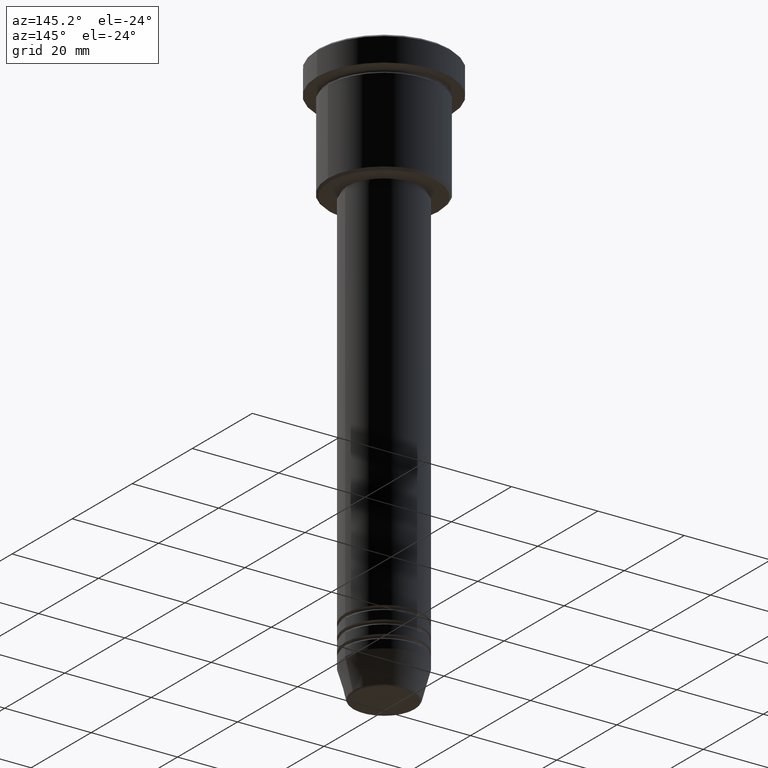
[diagram: clean part render]
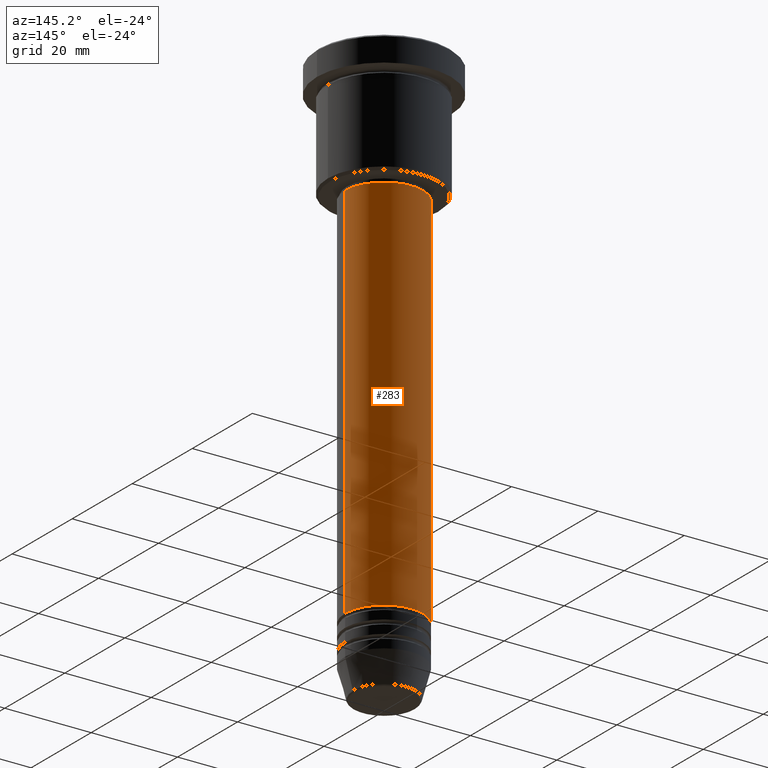
[diagram: same view with one face highlighted and labeled with its STEP entity id]
A machine part, auxiliary view. The second image highlights one B-rep face of the part: STEP entity #283.
In plain terms, the highlighted cylindrical surface (partial cylindrical patch) has radius 9 mm, axis along (-0, -0, 1).
Its self-contained STEP definition (entity closure, byte-faithful):
#38 = VERTEX_POINT ( 'NONE', #1037 ) ;
#41 = AXIS2_PLACEMENT_3D ( 'NONE', #1177, #387, #844 ) ;
#44 = CARTESIAN_POINT ( 'NONE',  ( -9.000000000000000000, 1.102182119232617714E-15, -28.00000000000000355 ) ) ;
#48 = LINE ( 'NONE', #419, #811 ) ;
#100 = VERTEX_POINT ( 'NONE', #237 ) ;
#152 = VECTOR ( 'NONE', #616, 1000.000000000000000 ) ;
#237 = CARTESIAN_POINT ( 'NONE',  ( 9.000000000000000000, 0.000000000000000000, -28.00000000000000355 ) ) ;
#283 = ADVANCED_FACE ( 'NONE', ( #907 ), #740, .T. ) ;
#345 = CARTESIAN_POINT ( 'NONE',  ( -9.000000000000000000, 1.102182119232617714E-15, 0.000000000000000000 ) ) ;
#356 = EDGE_LOOP ( 'NONE', ( #520, #859, #892, #686 ) ) ;
#375 = VERTEX_POINT ( 'NONE', #44 ) ;
#387 = DIRECTION ( 'NONE',  ( -0.000000000000000000, -0.000000000000000000, 1.000000000000000000 ) ) ;
#419 = CARTESIAN_POINT ( 'NONE',  ( 9.000000000000000000, 0.000000000000000000, 0.000000000000000000 ) ) ;
#425 = AXIS2_PLACEMENT_3D ( 'NONE', #652, #931, #916 ) ;
#440 = LINE ( 'NONE', #345, #152 ) ;
#450 = EDGE_CURVE ( 'NONE', #38, #100, #48, .T. ) ;
#520 = ORIENTED_EDGE ( 'NONE', *, *, #630, .T. ) ;
#571 = DIRECTION ( 'NONE',  ( -0.000000000000000000, -0.000000000000000000, 1.000000000000000000 ) ) ;
#584 = VERTEX_POINT ( 'NONE', #804 ) ;
#616 = DIRECTION ( 'NONE',  ( -0.000000000000000000, -0.000000000000000000, 1.000000000000000000 ) ) ;
#630 = EDGE_CURVE ( 'NONE', #38, #584, #831, .T. ) ;
#652 = CARTESIAN_POINT ( 'NONE',  ( 0.000000000000000000, 0.000000000000000000, -28.00000000000000355 ) ) ;
#686 = ORIENTED_EDGE ( 'NONE', *, *, #450, .F. ) ;
#740 = CYLINDRICAL_SURFACE ( 'NONE', #1164, 9.000000000000000000 ) ;
#765 = EDGE_CURVE ( 'NONE', #100, #375, #939, .T. ) ;
#804 = CARTESIAN_POINT ( 'NONE',  ( -9.000000000000000000, 1.102182119232617714E-15, -115.9999999999999574 ) ) ;
#811 = VECTOR ( 'NONE', #571, 1000.000000000000000 ) ;
#831 = CIRCLE ( 'NONE', #41, 9.000000000000000000 ) ;
#844 = DIRECTION ( 'NONE',  ( 1.000000000000000000, 0.000000000000000000, 0.000000000000000000 ) ) ;
#859 = ORIENTED_EDGE ( 'NONE', *, *, #966, .T. ) ;
#892 = ORIENTED_EDGE ( 'NONE', *, *, #765, .F. ) ;
#907 = FACE_OUTER_BOUND ( 'NONE', #356, .T. ) ;
#916 = DIRECTION ( 'NONE',  ( 1.000000000000000000, 0.000000000000000000, 0.000000000000000000 ) ) ;
#931 = DIRECTION ( 'NONE',  ( -0.000000000000000000, -0.000000000000000000, 1.000000000000000000 ) ) ;
#939 = CIRCLE ( 'NONE', #425, 9.000000000000000000 ) ;
#966 = EDGE_CURVE ( 'NONE', #584, #375, #440, .T. ) ;
#1007 = DIRECTION ( 'NONE',  ( -0.000000000000000000, -0.000000000000000000, 1.000000000000000000 ) ) ;
#1037 = CARTESIAN_POINT ( 'NONE',  ( 9.000000000000000000, 0.000000000000000000, -115.9999999999999574 ) ) ;
#1082 = CARTESIAN_POINT ( 'NONE',  ( 0.000000000000000000, 0.000000000000000000, 0.000000000000000000 ) ) ;
#1093 = DIRECTION ( 'NONE',  ( 1.000000000000000000, 0.000000000000000000, 0.000000000000000000 ) ) ;
#1164 = AXIS2_PLACEMENT_3D ( 'NONE', #1082, #1007, #1093 ) ;
#1177 = CARTESIAN_POINT ( 'NONE',  ( 0.000000000000000000, 0.000000000000000000, -115.9999999999999574 ) ) ;